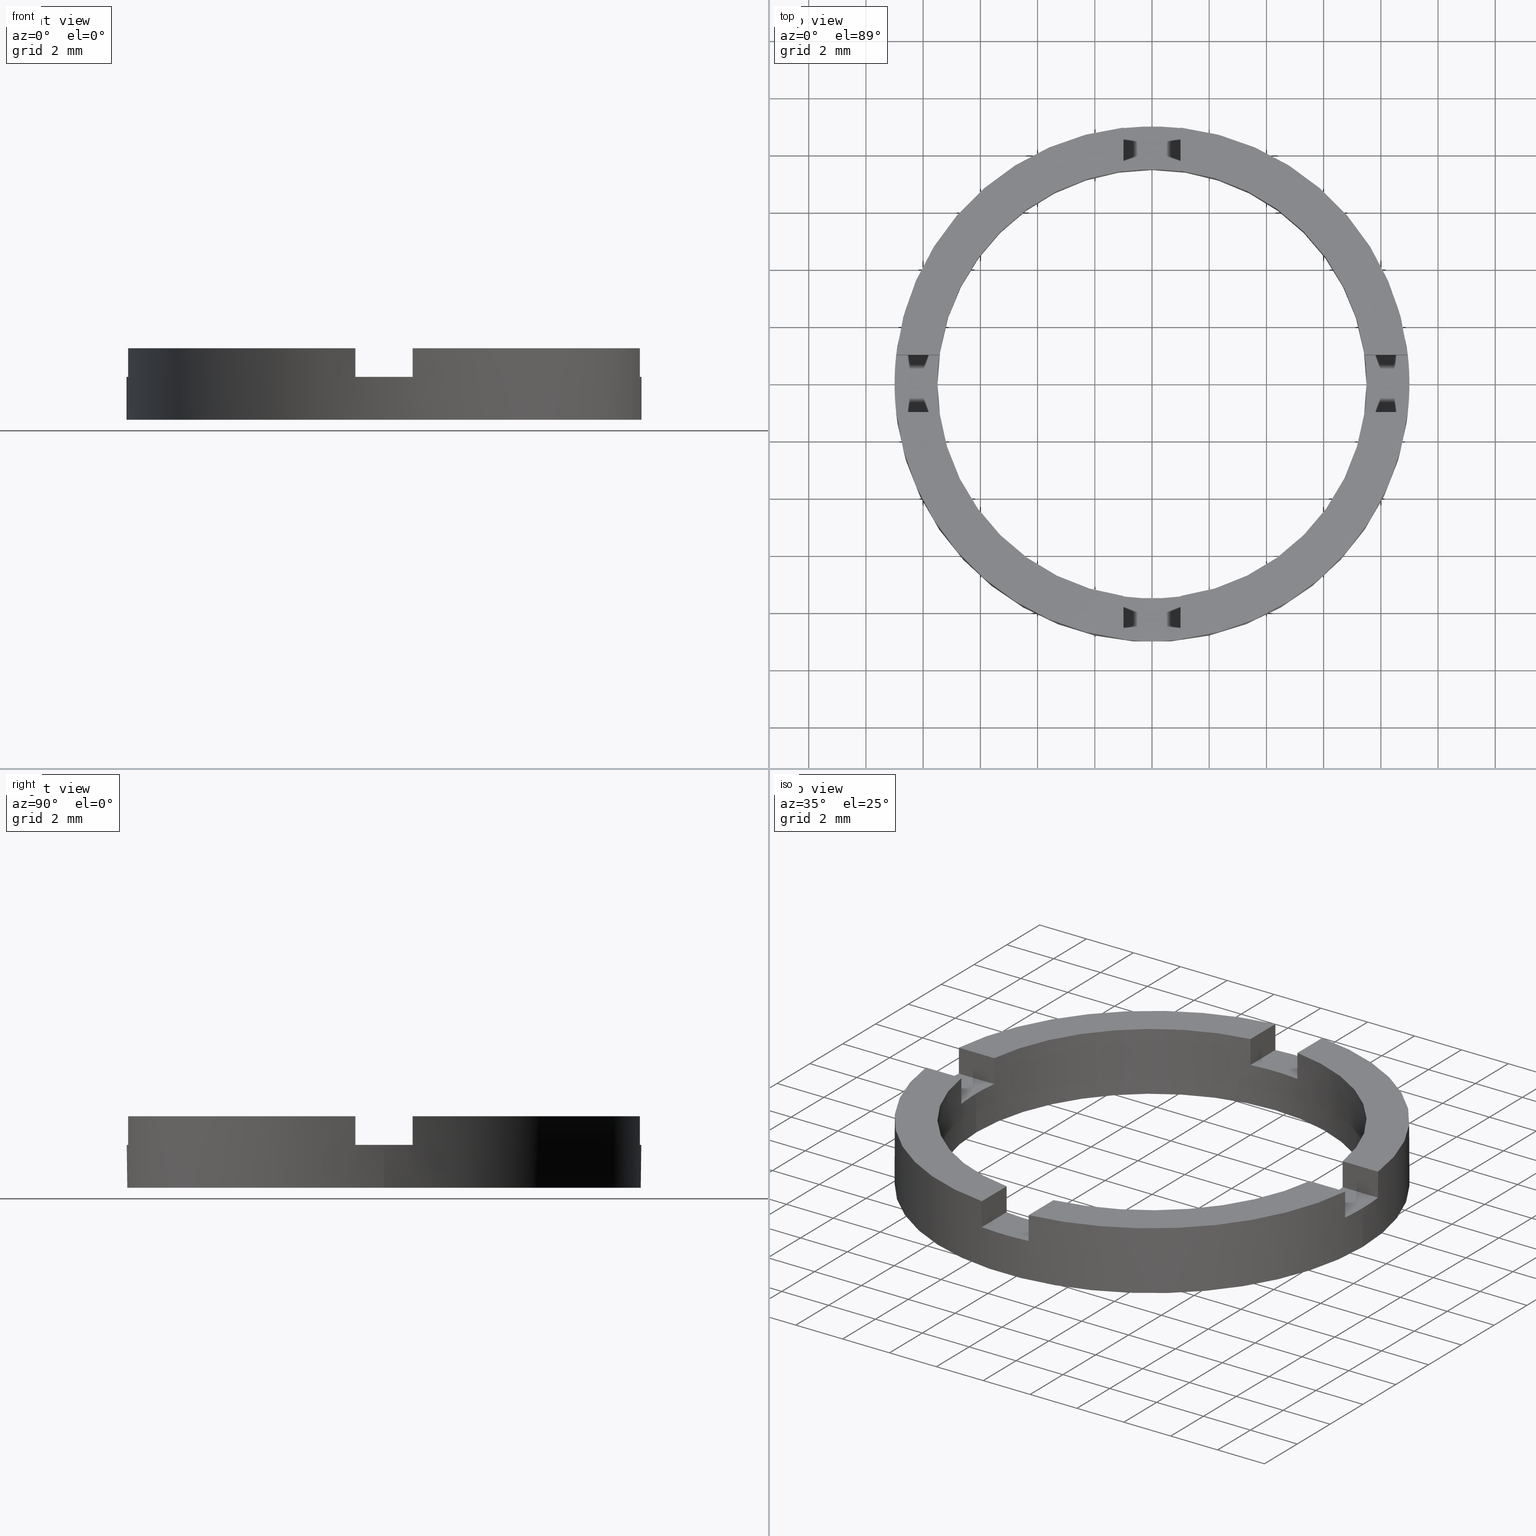
[diagram: canonical four-view strip — front | top / right | iso, engineering-drawing reading convention]
A machine part, canonical four-view strip (front | top / right | iso — engineering-drawing reading convention). The complete STEP part file that produces these views, byte-faithful:
ISO-10303-21;
HEADER;
FILE_DESCRIPTION (( 'STEP AP203' ),
    '1' );
FILE_NAME ('514044.step',
    '2024-12-26T02:32:12',
    ( 'MSI' ),
    ( '' ),
    'SwSTEP 2.0',
    'SolidWorks 2020',
    '' );
FILE_SCHEMA (( 'CONFIG_CONTROL_DESIGN' ));
ENDSEC;

DATA;
#1 = ORIENTED_EDGE ( 'NONE', *, *, #512, .F. ) ;
#2 = ORIENTED_EDGE ( 'NONE', *, *, #263, .T. ) ;
#3 = CARTESIAN_POINT ( 'NONE',  ( -3.734474149672297082E-15, -1.000000000000001110, 2.500000000000000000 ) ) ;
#4 = ORIENTED_EDGE ( 'NONE', *, *, #646, .F. ) ;
#5 = ORIENTED_EDGE ( 'NONE', *, *, #449, .T. ) ;
#6 = DIRECTION ( 'NONE',  ( 1.000000000000000000, -3.734474149672292349E-15, 0.000000000000000000 ) ) ;
#7 = CLOSED_SHELL ( 'NONE', ( #718, #144, #584, #213, #195, #557, #84, #240, #452, #344, #501, #593, #202, #30, #511, #19, #10, #471, #245, #756, #565 ) ) ;
#8 = ORIENTED_EDGE ( 'NONE', *, *, #385, .F. ) ;
#9 = EDGE_CURVE ( 'NONE', #562, #535, #103, .T. ) ;
#10 = ADVANCED_FACE ( 'NONE', ( #378 ), #79, .F. ) ;
#11 = ORIENTED_EDGE ( 'NONE', *, *, #450, .T. ) ;
#12 = ORIENTED_EDGE ( 'NONE', *, *, #148, .F. ) ;
#13 = CARTESIAN_POINT ( 'NONE',  ( -7.433034373659249461, 1.000000000000026645, 2.500000000000000000 ) ) ;
#14 = VERTEX_POINT ( 'NONE', #136 ) ;
#15 = ORIENTED_EDGE ( 'NONE', *, *, #51, .T. ) ;
#16 = ORIENTED_EDGE ( 'NONE', *, *, #37, .T. ) ;
#17 = FACE_OUTER_BOUND ( 'NONE', #521, .T. ) ;
#18 = CARTESIAN_POINT ( 'NONE',  ( 0.000000000000000000, 0.000000000000000000, 2.500000000000000000 ) ) ;
#19 = ADVANCED_FACE ( 'NONE', ( #645 ), #197, .T. ) ;
#20 = VERTEX_POINT ( 'NONE', #443 ) ;
#21 = CARTESIAN_POINT ( 'NONE',  ( 0.000000000000000000, 0.000000000000000000, 1.500000000000000000 ) ) ;
#22 = ORIENTED_EDGE ( 'NONE', *, *, #638, .F. ) ;
#23 = AXIS2_PLACEMENT_3D ( 'NONE', #729, #420, #607 ) ;
#24 = ORIENTED_EDGE ( 'NONE', *, *, #754, .T. ) ;
#25 = CARTESIAN_POINT ( 'NONE',  ( -0.9999999999999986677, -8.944271909999157444, 1.500000000000000000 ) ) ;
#26 = ORIENTED_EDGE ( 'NONE', *, *, #135, .F. ) ;
#27 = DIRECTION ( 'NONE',  ( 1.000000000000000000, -3.734474149672293138E-15, 0.000000000000000000 ) ) ;
#28 = ORIENTED_EDGE ( 'NONE', *, *, #194, .T. ) ;
#29 = CARTESIAN_POINT ( 'NONE',  ( -0.9999999999999986677, -7.433034373659253013, 1.500000000000000000 ) ) ;
#30 = ADVANCED_FACE ( 'NONE', ( #372 ), #681, .F. ) ;
#31 = PLANE ( 'NONE',  #365 ) ;
#32 = ORIENTED_EDGE ( 'NONE', *, *, #737, .F. ) ;
#33 = CARTESIAN_POINT ( 'NONE',  ( -7.500000000000000000, 0.000000000000000000, 1.500000000000000000 ) ) ;
#34 = DIRECTION ( 'NONE',  ( 0.000000000000000000, 0.000000000000000000, 1.000000000000000000 ) ) ;
#35 = CIRCLE ( 'NONE', #748, 7.500000000000000000 ) ;
#36 =( LENGTH_UNIT ( ) NAMED_UNIT ( * ) SI_UNIT ( .MILLI., .METRE. ) );
#37 = EDGE_CURVE ( 'NONE', #374, #261, #640, .T. ) ;
#38 = DIRECTION ( 'NONE',  ( -0.000000000000000000, -0.000000000000000000, 1.000000000000000000 ) ) ;
#39 = LINE ( 'NONE', #173, #306 ) ;
#40 = CIRCLE ( 'NONE', #275, 7.500000000000000000 ) ;
#41 = DIRECTION ( 'NONE',  ( 1.000000000000000000, 1.065814103640150279E-14, 0.000000000000000000 ) ) ;
#42 = LINE ( 'NONE', #493, #65 ) ;
#43 = PERSON_AND_ORGANIZATION_ROLE ( 'design_owner' ) ;
#44 = VECTOR ( 'NONE', #688, 1000.000000000000000 ) ;
#45 = CARTESIAN_POINT ( 'NONE',  ( -0.9999999999999986677, -7.433034373659253013, 1.500000000000000000 ) ) ;
#46 = LINE ( 'NONE', #128, #575 ) ;
#47 = CIRCLE ( 'NONE', #61, 9.000000000000000000 ) ;
#48 = EDGE_CURVE ( 'NONE', #247, #484, #107, .T. ) ;
#49 = DIRECTION ( 'NONE',  ( -0.000000000000000000, -0.000000000000000000, 1.000000000000000000 ) ) ;
#50 = LINE ( 'NONE', #742, #319 ) ;
#51 = EDGE_CURVE ( 'NONE', #691, #745, #578, .T. ) ;
#52 = CIRCLE ( 'NONE', #683, 7.500000000000000000 ) ;
#53 = CARTESIAN_POINT ( 'NONE',  ( 0.000000000000000000, 0.000000000000000000, 2.500000000000000000 ) ) ;
#54 = CIRCLE ( 'NONE', #502, 9.000000000000000000 ) ;
#55 = FACE_OUTER_BOUND ( 'NONE', #692, .T. ) ;
#56 = VECTOR ( 'NONE', #427, 1000.000000000000000 ) ;
#57 = PLANE ( 'NONE',  #392 ) ;
#58 = VECTOR ( 'NONE', #243, 1000.000000000000000 ) ;
#59 = CARTESIAN_POINT ( 'NONE',  ( 0.000000000000000000, 0.000000000000000000, 1.500000000000000000 ) ) ;
#60 = CARTESIAN_POINT ( 'NONE',  ( 1.000000000000001332, -8.944271909999157444, 1.500000000000000000 ) ) ;
#61 = AXIS2_PLACEMENT_3D ( 'NONE', #219, #422, #149 ) ;
#62 = EDGE_CURVE ( 'NONE', #20, #548, #596, .T. ) ;
#63 = FACE_OUTER_BOUND ( 'NONE', #650, .T. ) ;
#64 = LINE ( 'NONE', #60, #299 ) ;
#65 = VECTOR ( 'NONE', #123, 1000.000000000000000 ) ;
#66 = VECTOR ( 'NONE', #27, 1000.000000000000000 ) ;
#67 = LINE ( 'NONE', #3, #580 ) ;
#68 = DIRECTION ( 'NONE',  ( 0.000000000000000000, 0.000000000000000000, 1.000000000000000000 ) ) ;
#69 = LINE ( 'NONE', #573, #330 ) ;
#70 = AXIS2_PLACEMENT_3D ( 'NONE', #192, #559, #387 ) ;
#71 = DIRECTION ( 'NONE',  ( -0.000000000000000000, -0.000000000000000000, 1.000000000000000000 ) ) ;
#72 = FACE_OUTER_BOUND ( 'NONE', #276, .T. ) ;
#73 = VECTOR ( 'NONE', #396, 1000.000000000000000 ) ;
#74 = FACE_OUTER_BOUND ( 'NONE', #526, .T. ) ;
#75 = FACE_OUTER_BOUND ( 'NONE', #106, .T. ) ;
#76 = LINE ( 'NONE', #457, #611 ) ;
#77 = AXIS2_PLACEMENT_3D ( 'NONE', #739, #625, #434 ) ;
#78 = LINE ( 'NONE', #273, #349 ) ;
#79 = PLANE ( 'NONE',  #760 ) ;
#80 = VECTOR ( 'NONE', #670, 1000.000000000000000 ) ;
#81 = LINE ( 'NONE', #716, #614 ) ;
#82 = CIRCLE ( 'NONE', #746, 9.000000000000000000 ) ;
#83 = LINE ( 'NONE', #654, #346 ) ;
#84 = ADVANCED_FACE ( 'NONE', ( #597 ), #594, .T. ) ;
#85 = VECTOR ( 'NONE', #291, 1000.000000000000000 ) ;
#86 = LINE ( 'NONE', #249, #359 ) ;
#87 = FACE_OUTER_BOUND ( 'NONE', #781, .T. ) ;
#88 = EDGE_CURVE ( 'NONE', #14, #97, #54, .T. ) ;
#89 = CIRCLE ( 'NONE', #571, 9.000000000000000000 ) ;
#90 = DIRECTION ( 'NONE',  ( -0.000000000000000000, 0.000000000000000000, 1.000000000000000000 ) ) ;
#91 = CIRCLE ( 'NONE', #736, 9.000000000000000000 ) ;
#92 = VECTOR ( 'NONE', #184, 1000.000000000000000 ) ;
#93 = LINE ( 'NONE', #347, #362 ) ;
#94 = VECTOR ( 'NONE', #71, 1000.000000000000000 ) ;
#95 = CARTESIAN_POINT ( 'NONE',  ( -8.944271909999153891, 1.000000000000032419, 1.500000000000000000 ) ) ;
#96 = CARTESIAN_POINT ( 'NONE',  ( -0.9999999999999986677, 0.000000000000000000, 1.500000000000000000 ) ) ;
#97 = VERTEX_POINT ( 'NONE', #499 ) ;
#98 = AXIS2_PLACEMENT_3D ( 'NONE', #598, #703, #504 ) ;
#99 = EDGE_LOOP ( 'NONE', ( #228, #519, #537, #439, #541, #464, #125, #664, #26, #28, #395, #706 ) ) ;
#100 = EDGE_CURVE ( 'NONE', #665, #562, #52, .T. ) ;
#101 = CARTESIAN_POINT ( 'NONE',  ( 7.500000000000000000, 9.184850993605147944E-16, 1.500000000000000000 ) ) ;
#102 = ORIENTED_EDGE ( 'NONE', *, *, #678, .F. ) ;
#103 = LINE ( 'NONE', #635, #94 ) ;
#104 = DIRECTION ( 'NONE',  ( 1.000000000000000000, 0.000000000000000000, 0.000000000000000000 ) ) ;
#105 = APPLICATION_PROTOCOL_DEFINITION ( 'international standard', 'config_control_design', 1994, #608 ) ;
#106 = EDGE_LOOP ( 'NONE', ( #778, #642, #5, #644, #416, #546 ) ) ;
#107 = LINE ( 'NONE', #333, #66 ) ;
#108 = DIRECTION ( 'NONE',  ( 0.000000000000000000, 1.000000000000000000, -0.000000000000000000 ) ) ;
#109 = EDGE_LOOP ( 'NONE', ( #139, #32, #24, #270 ) ) ;
#110 = VERTEX_POINT ( 'NONE', #386 ) ;
#111 = CARTESIAN_POINT ( 'NONE',  ( 0.000000000000000000, 0.000000000000000000, 1.500000000000000000 ) ) ;
#112 = MECHANICAL_CONTEXT ( 'NONE', #608, 'mechanical' ) ;
#113 = VERTEX_POINT ( 'NONE', #124 ) ;
#114 = AXIS2_PLACEMENT_3D ( 'NONE', #487, #747, #41 ) ;
#115 = DIRECTION ( 'NONE',  ( 1.000000000000000000, 0.000000000000000000, 0.000000000000000000 ) ) ;
#116 = DIRECTION ( 'NONE',  ( 1.000000000000000000, 0.000000000000000000, -0.000000000000000000 ) ) ;
#117 = DIRECTION ( 'NONE',  ( 0.000000000000000000, 0.000000000000000000, 1.000000000000000000 ) ) ;
#118 = DIRECTION ( 'NONE',  ( 1.000000000000000000, 0.000000000000000000, 0.000000000000000000 ) ) ;
#119 = EDGE_CURVE ( 'NONE', #143, #540, #308, .T. ) ;
#120 = APPLICATION_CONTEXT ( 'configuration controlled 3d designs of mechanical parts and assemblies' ) ;
#121 = CARTESIAN_POINT ( 'NONE',  ( 7.433034373659256566, 0.9999999999999711342, 1.500000000000000000 ) ) ;
#122 = DIRECTION ( 'NONE',  ( -0.000000000000000000, -0.000000000000000000, 1.000000000000000000 ) ) ;
#123 = DIRECTION ( 'NONE',  ( -0.000000000000000000, -0.000000000000000000, -1.000000000000000000 ) ) ;
#124 = CARTESIAN_POINT ( 'NONE',  ( -7.433034373659249461, 1.000000000000026645, 1.500000000000000000 ) ) ;
#125 = ORIENTED_EDGE ( 'NONE', *, *, #731, .F. ) ;
#126 = EDGE_CURVE ( 'NONE', #562, #691, #50, .T. ) ;
#127 = ORIENTED_EDGE ( 'NONE', *, *, #126, .F. ) ;
#128 = CARTESIAN_POINT ( 'NONE',  ( 1.000000000000001332, 0.000000000000000000, 1.500000000000000000 ) ) ;
#129 = ORIENTED_EDGE ( 'NONE', *, *, #536, .T. ) ;
#130 = PLANE ( 'NONE',  #141 ) ;
#131 = APPROVAL ( #287, 'δָ��' ) ;
#132 = ORIENTED_EDGE ( 'NONE', *, *, #157, .T. ) ;
#133 = DIRECTION ( 'NONE',  ( -0.000000000000000000, -0.000000000000000000, -1.000000000000000000 ) ) ;
#134 = AXIS2_PLACEMENT_3D ( 'NONE', #414, #104, #579 ) ;
#135 = EDGE_CURVE ( 'NONE', #773, #545, #322, .T. ) ;
#136 = CARTESIAN_POINT ( 'NONE',  ( -8.944271909999160997, -0.9999999999999676925, 2.500000000000000000 ) ) ;
#137 = ORIENTED_EDGE ( 'NONE', *, *, #672, .F. ) ;
#138 = CARTESIAN_POINT ( 'NONE',  ( 0.000000000000000000, 0.000000000000000000, 2.500000000000000000 ) ) ;
#139 = ORIENTED_EDGE ( 'NONE', *, *, #488, .F. ) ;
#140 = CARTESIAN_POINT ( 'NONE',  ( 0.000000000000000000, 0.000000000000000000, 1.500000000000000000 ) ) ;
#141 = AXIS2_PLACEMENT_3D ( 'NONE', #302, #196, #639 ) ;
#142 = ORIENTED_EDGE ( 'NONE', *, *, #734, .F. ) ;
#143 = VERTEX_POINT ( 'NONE', #238 ) ;
#144 = ADVANCED_FACE ( 'NONE', ( #314 ), #592, .T. ) ;
#145 = CARTESIAN_POINT ( 'NONE',  ( 0.000000000000000000, 0.000000000000000000, 0.000000000000000000 ) ) ;
#146 = CARTESIAN_POINT ( 'NONE',  ( 0.000000000000000000, 0.000000000000000000, 1.500000000000000000 ) ) ;
#147 = EDGE_CURVE ( 'NONE', #484, #208, #576, .T. ) ;
#148 = EDGE_CURVE ( 'NONE', #261, #374, #316, .T. ) ;
#149 = DIRECTION ( 'NONE',  ( 1.000000000000000000, 0.000000000000000000, 0.000000000000000000 ) ) ;
#150 = DIRECTION ( 'NONE',  ( 0.000000000000000000, 0.000000000000000000, 1.000000000000000000 ) ) ;
#151 = VERTEX_POINT ( 'NONE', #388 ) ;
#152 = ORIENTED_EDGE ( 'NONE', *, *, #232, .F. ) ;
#153 = PLANE ( 'NONE',  #175 ) ;
#154 = PERSON_AND_ORGANIZATION_ROLE ( 'design_supplier' ) ;
#155 = APPROVAL_DATE_TIME ( #181, #131 ) ;
#156 = ORIENTED_EDGE ( 'NONE', *, *, #505, .T. ) ;
#157 = EDGE_CURVE ( 'NONE', #466, #643, #572, .T. ) ;
#158 = EDGE_CURVE ( 'NONE', #466, #261, #42, .T. ) ;
#159 = CARTESIAN_POINT ( 'NONE',  ( 0.000000000000000000, 0.000000000000000000, 2.500000000000000000 ) ) ;
#160 = EDGE_LOOP ( 'NONE', ( #687, #776, #752, #743 ) ) ;
#161 = ORIENTED_EDGE ( 'NONE', *, *, #48, .T. ) ;
#162 = APPROVAL_PERSON_ORGANIZATION ( #190, #241, #279 ) ;
#163 = DIRECTION ( 'NONE',  ( -0.000000000000000000, 0.000000000000000000, 1.000000000000000000 ) ) ;
#164 = APPROVAL_ROLE ( '' ) ;
#165 = CARTESIAN_POINT ( 'NONE',  ( 0.000000000000000000, 0.000000000000000000, 2.500000000000000000 ) ) ;
#166 = PERSON_AND_ORGANIZATION ( #244, #704 ) ;
#167 = PERSON_AND_ORGANIZATION ( #244, #704 ) ;
#168 = DIRECTION ( 'NONE',  ( 1.000000000000000000, 0.000000000000000000, 0.000000000000000000 ) ) ;
#169 = ORIENTED_EDGE ( 'NONE', *, *, #62, .F. ) ;
#170 = APPROVAL_PERSON_ORGANIZATION ( #167, #376, #353 ) ;
#171 = COORDINATED_UNIVERSAL_TIME_OFFSET ( 8, 0, .AHEAD. ) ;
#172 = VERTEX_POINT ( 'NONE', #684 ) ;
#173 = CARTESIAN_POINT ( 'NONE',  ( -3.734474149672297082E-15, -1.000000000000001110, 1.500000000000000000 ) ) ;
#174 = DIRECTION ( 'NONE',  ( -0.000000000000000000, -0.000000000000000000, -1.000000000000000000 ) ) ;
#175 = AXIS2_PLACEMENT_3D ( 'NONE', #204, #34, #221 ) ;
#176 = CALENDAR_DATE ( 2024, 26, 12 ) ;
#177 = ORIENTED_EDGE ( 'NONE', *, *, #119, .T. ) ;
#178 = CALENDAR_DATE ( 2024, 26, 12 ) ;
#179 = CARTESIAN_POINT ( 'NONE',  ( 0.000000000000000000, 0.000000000000000000, 1.500000000000000000 ) ) ;
#180 = DIRECTION ( 'NONE',  ( 0.000000000000000000, 0.000000000000000000, -1.000000000000000000 ) ) ;
#181 = DATE_AND_TIME ( #178, #185 ) ;
#182 = ORIENTED_EDGE ( 'NONE', *, *, #336, .F. ) ;
#183 = CALENDAR_DATE ( 2024, 26, 12 ) ;
#184 = DIRECTION ( 'NONE',  ( 0.000000000000000000, 1.000000000000000000, -0.000000000000000000 ) ) ;
#185 = LOCAL_TIME ( 10, 32, 12.00000000000000000, #446 ) ;
#186 = APPROVAL_DATE_TIME ( #711, #241 ) ;
#187 = LOCAL_TIME ( 10, 32, 12.00000000000000000, #171 ) ;
#188 = LOCAL_TIME ( 10, 32, 12.00000000000000000, #456 ) ;
#189 = DIRECTION ( 'NONE',  ( 1.000000000000000000, 0.000000000000000000, 0.000000000000000000 ) ) ;
#190 = PERSON_AND_ORGANIZATION ( #244, #704 ) ;
#191 = DATE_AND_TIME ( #441, #187 ) ;
#192 = CARTESIAN_POINT ( 'NONE',  ( -3.734474149672297082E-15, -1.000000000000001110, 1.500000000000000000 ) ) ;
#193 = EDGE_CURVE ( 'NONE', #535, #745, #67, .T. ) ;
#194 = EDGE_CURVE ( 'NONE', #773, #208, #589, .T. ) ;
#195 = ADVANCED_FACE ( 'NONE', ( #311 ), #630, .T. ) ;
#196 = DIRECTION ( 'NONE',  ( -3.734474149672293138E-15, -1.000000000000000000, 0.000000000000000000 ) ) ;
#197 = PLANE ( 'NONE',  #624 ) ;
#198 = DIRECTION ( 'NONE',  ( 1.000000000000000000, 0.000000000000000000, 0.000000000000000000 ) ) ;
#199 = AXIS2_PLACEMENT_3D ( 'NONE', #146, #517, #727 ) ;
#200 = EDGE_CURVE ( 'NONE', #432, #773, #46, .T. ) ;
#201 = CARTESIAN_POINT ( 'NONE',  ( 3.734474149672289194E-15, 0.9999999999999988898, 2.500000000000000000 ) ) ;
#202 = ADVANCED_FACE ( 'NONE', ( #63 ), #130, .T. ) ;
#203 = ORIENTED_EDGE ( 'NONE', *, *, #696, .T. ) ;
#204 = CARTESIAN_POINT ( 'NONE',  ( 0.000000000000000000, 0.000000000000000000, 0.000000000000000000 ) ) ;
#205 = CC_DESIGN_SECURITY_CLASSIFICATION ( #779, ( #495 ) ) ;
#206 = EDGE_CURVE ( 'NONE', #771, #643, #310, .T. ) ;
#207 = DIRECTION ( 'NONE',  ( 0.000000000000000000, -0.000000000000000000, -1.000000000000000000 ) ) ;
#208 = VERTEX_POINT ( 'NONE', #770 ) ;
#209 = DIRECTION ( 'NONE',  ( -0.000000000000000000, 0.000000000000000000, 1.000000000000000000 ) ) ;
#210 = ORIENTED_EDGE ( 'NONE', *, *, #193, .F. ) ;
#211 = ORIENTED_EDGE ( 'NONE', *, *, #224, .F. ) ;
#212 = CARTESIAN_POINT ( 'NONE',  ( 7.500000000000000000, 9.184850993605147944E-16, 0.000000000000000000 ) ) ;
#213 = ADVANCED_FACE ( 'NONE', ( #321 ), #57, .T. ) ;
#214 = CARTESIAN_POINT ( 'NONE',  ( 0.000000000000000000, 0.000000000000000000, 2.500000000000000000 ) ) ;
#215 = EDGE_CURVE ( 'NONE', #771, #247, #324, .T. ) ;
#216 = ORIENTED_EDGE ( 'NONE', *, *, #713, .T. ) ;
#217 = DIRECTION ( 'NONE',  ( 0.000000000000000000, 0.000000000000000000, 1.000000000000000000 ) ) ;
#218 =( NAMED_UNIT ( * ) SI_UNIT ( $, .STERADIAN. ) SOLID_ANGLE_UNIT ( ) );
#219 = CARTESIAN_POINT ( 'NONE',  ( 0.000000000000000000, 0.000000000000000000, 1.500000000000000000 ) ) ;
#220 = CARTESIAN_POINT ( 'NONE',  ( 1.000000000000001332, 7.433034373659253013, 2.500000000000000000 ) ) ;
#221 = DIRECTION ( 'NONE',  ( 1.000000000000000000, 0.000000000000000000, -0.000000000000000000 ) ) ;
#222 = CC_DESIGN_PERSON_AND_ORGANIZATION_ASSIGNMENT ( #437, #154, ( #495 ) ) ;
#223 = PLANE ( 'NONE',  #677 ) ;
#224 = EDGE_CURVE ( 'NONE', #542, #535, #40, .T. ) ;
#225 = CARTESIAN_POINT ( 'NONE',  ( 0.000000000000000000, 0.000000000000000000, 0.000000000000000000 ) ) ;
#226 = DIRECTION ( 'NONE',  ( 1.000000000000000000, 0.000000000000000000, 0.000000000000000000 ) ) ;
#227 = DIRECTION ( 'NONE',  ( -1.000000000000000000, 0.000000000000000000, 0.000000000000000000 ) ) ;
#228 = ORIENTED_EDGE ( 'NONE', *, *, #157, .F. ) ;
#229 = CARTESIAN_POINT ( 'NONE',  ( 1.000000000000001332, 0.000000000000000000, 1.500000000000000000 ) ) ;
#230 = CARTESIAN_POINT ( 'NONE',  ( 9.000000000000000000, 1.102182119232617714E-15, 0.000000000000000000 ) ) ;
#231 = EDGE_CURVE ( 'NONE', #691, #466, #47, .T. ) ;
#232 = EDGE_CURVE ( 'NONE', #247, #693, #327, .T. ) ;
#233 = DIRECTION ( 'NONE',  ( 0.000000000000000000, 0.000000000000000000, -1.000000000000000000 ) ) ;
#234 = DIRECTION ( 'NONE',  ( 1.000000000000000000, 0.000000000000000000, -0.000000000000000000 ) ) ;
#235 = DIRECTION ( 'NONE',  ( 1.000000000000000000, 0.000000000000000000, 0.000000000000000000 ) ) ;
#236 = AXIS2_PLACEMENT_3D ( 'NONE', #59, #490, #506 ) ;
#237 = DIRECTION ( 'NONE',  ( 0.000000000000000000, 1.000000000000000000, -0.000000000000000000 ) ) ;
#238 = CARTESIAN_POINT ( 'NONE',  ( -8.944271909999153891, 1.000000000000032419, 2.500000000000000000 ) ) ;
#239 = CARTESIAN_POINT ( 'NONE',  ( 0.000000000000000000, 0.000000000000000000, 1.500000000000000000 ) ) ;
#240 = ADVANCED_FACE ( 'NONE', ( #55 ), #560, .F. ) ;
#241 = APPROVAL ( #415, 'δָ��' ) ;
#242 = CARTESIAN_POINT ( 'NONE',  ( 3.734474149672289194E-15, 0.9999999999999988898, 1.500000000000000000 ) ) ;
#243 = DIRECTION ( 'NONE',  ( 1.000000000000000000, -3.734474149672293138E-15, 0.000000000000000000 ) ) ;
#244 = PERSON ( 'δָ��', 'δָ��', 'δָ��', ('δָ��'), ('δָ��'), ('δָ��') ) ;
#245 = ADVANCED_FACE ( 'NONE', ( #17 ), #31, .T. ) ;
#246 = ORIENTED_EDGE ( 'NONE', *, *, #558, .T. ) ;
#247 = VERTEX_POINT ( 'NONE', #733 ) ;
#248 = ORIENTED_EDGE ( 'NONE', *, *, #200, .F. ) ;
#249 = CARTESIAN_POINT ( 'NONE',  ( -9.000000000000000000, 0.000000000000000000, 2.500000000000000000 ) ) ;
#250 = ORIENTED_EDGE ( 'NONE', *, *, #459, .F. ) ;
#251 = PLANE ( 'NONE',  #199 ) ;
#252 = ORIENTED_EDGE ( 'NONE', *, *, #761, .F. ) ;
#253 = DIRECTION ( 'NONE',  ( -0.000000000000000000, -0.000000000000000000, 1.000000000000000000 ) ) ;
#254 = ORIENTED_EDGE ( 'NONE', *, *, #412, .T. ) ;
#255 = ORIENTED_EDGE ( 'NONE', *, *, #119, .F. ) ;
#256 = CARTESIAN_POINT ( 'NONE',  ( 1.000000000000001332, -7.433034373659253013, 2.500000000000000000 ) ) ;
#257 = DIRECTION ( 'NONE',  ( 0.000000000000000000, 0.000000000000000000, 1.000000000000000000 ) ) ;
#258 = EDGE_LOOP ( 'NONE', ( #264, #129, #641, #375 ) ) ;
#259 = DIRECTION ( 'NONE',  ( 0.000000000000000000, 0.000000000000000000, 1.000000000000000000 ) ) ;
#260 = ORIENTED_EDGE ( 'NONE', *, *, #100, .F. ) ;
#261 = VERTEX_POINT ( 'NONE', #230 ) ;
#262 = AXIS2_PLACEMENT_3D ( 'NONE', #214, #259, #508 ) ;
#263 = EDGE_CURVE ( 'NONE', #661, #702, #590, .T. ) ;
#264 = ORIENTED_EDGE ( 'NONE', *, *, #492, .F. ) ;
#265 = DIRECTION ( 'NONE',  ( 1.000000000000000000, 4.440892098500626162E-15, 0.000000000000000000 ) ) ;
#266 = ORIENTED_EDGE ( 'NONE', *, *, #450, .F. ) ;
#267 = DIRECTION ( 'NONE',  ( 1.000000000000000000, 0.000000000000000000, 0.000000000000000000 ) ) ;
#268 = ORIENTED_EDGE ( 'NONE', *, *, #734, .T. ) ;
#269 = EDGE_LOOP ( 'NONE', ( #555, #538, #127, #288 ) ) ;
#270 = ORIENTED_EDGE ( 'NONE', *, *, #638, .T. ) ;
#271 = APPROVAL_STATUS ( 'not_yet_approved' ) ;
#272 = ORIENTED_EDGE ( 'NONE', *, *, #48, .F. ) ;
#273 = CARTESIAN_POINT ( 'NONE',  ( -0.9999999999999986677, 0.000000000000000000, 2.500000000000000000 ) ) ;
#274 = ORIENTED_EDGE ( 'NONE', *, *, #206, .T. ) ;
#275 = AXIS2_PLACEMENT_3D ( 'NONE', #473, #758, #354 ) ;
#276 = EDGE_LOOP ( 'NONE', ( #260, #447, #250, #685, #738, #268, #462, #22, #182, #203, #430, #726 ) ) ;
#277 = ORIENTED_EDGE ( 'NONE', *, *, #669, .F. ) ;
#278 = DIRECTION ( 'NONE',  ( 0.000000000000000000, 1.000000000000000000, -0.000000000000000000 ) ) ;
#279 = APPROVAL_ROLE ( '' ) ;
#280 = CARTESIAN_POINT ( 'NONE',  ( 7.433034373659256566, 0.9999999999999711342, 1.500000000000000000 ) ) ;
#281 = ORIENTED_EDGE ( 'NONE', *, *, #669, .T. ) ;
#282 = PLANE ( 'NONE',  #262 ) ;
#283 = ORIENTED_EDGE ( 'NONE', *, *, #428, .F. ) ;
#284 = ORIENTED_EDGE ( 'NONE', *, *, #303, .F. ) ;
#285 = ORIENTED_EDGE ( 'NONE', *, *, #754, .F. ) ;
#286 = DIRECTION ( 'NONE',  ( 0.000000000000000000, 0.000000000000000000, 1.000000000000000000 ) ) ;
#287 = APPROVAL_STATUS ( 'not_yet_approved' ) ;
#288 = ORIENTED_EDGE ( 'NONE', *, *, #9, .T. ) ;
#289 = PRODUCT_RELATED_PRODUCT_CATEGORY ( 'detail', '', ( #551 ) ) ;
#290 = EDGE_CURVE ( 'NONE', #665, #527, #582, .T. ) ;
#291 = DIRECTION ( 'NONE',  ( -0.000000000000000000, -0.000000000000000000, 1.000000000000000000 ) ) ;
#292 = CARTESIAN_POINT ( 'NONE',  ( -7.500000000000000000, 0.000000000000000000, 2.500000000000000000 ) ) ;
#293 = ORIENTED_EDGE ( 'NONE', *, *, #393, .F. ) ;
#294 = AXIS2_PLACEMENT_3D ( 'NONE', #533, #616, #769 ) ;
#295 = ORIENTED_EDGE ( 'NONE', *, *, #780, .F. ) ;
#296 = ORIENTED_EDGE ( 'NONE', *, *, #696, .F. ) ;
#297 = PERSON_AND_ORGANIZATION_ROLE ( 'creator' ) ;
#298 = CARTESIAN_POINT ( 'NONE',  ( 0.000000000000000000, 0.000000000000000000, 1.500000000000000000 ) ) ;
#299 = VECTOR ( 'NONE', #122, 1000.000000000000000 ) ;
#300 = FACE_OUTER_BOUND ( 'NONE', #109, .T. ) ;
#301 = CIRCLE ( 'NONE', #435, 7.500000000000000000 ) ;
#302 = CARTESIAN_POINT ( 'NONE',  ( 3.734474149672289194E-15, 0.9999999999999988898, 1.500000000000000000 ) ) ;
#303 = EDGE_CURVE ( 'NONE', #432, #693, #587, .T. ) ;
#304 = CIRCLE ( 'NONE', #114, 7.500000000000000000 ) ;
#305 = EDGE_CURVE ( 'NONE', #445, #699, #567, .T. ) ;
#306 = VECTOR ( 'NONE', #368, 1000.000000000000000 ) ;
#307 = VECTOR ( 'NONE', #49, 1000.000000000000000 ) ;
#308 = LINE ( 'NONE', #201, #58 ) ;
#309 = ORIENTED_EDGE ( 'NONE', *, *, #88, .F. ) ;
#310 = LINE ( 'NONE', #529, #326 ) ;
#311 = FACE_OUTER_BOUND ( 'NONE', #160, .T. ) ;
#312 = VECTOR ( 'NONE', #478, 1000.000000000000000 ) ;
#313 = AXIS2_PLACEMENT_3D ( 'NONE', #298, #768, #377 ) ;
#314 = FACE_OUTER_BOUND ( 'NONE', #99, .T. ) ;
#315 = AXIS2_PLACEMENT_3D ( 'NONE', #588, #663, #659 ) ;
#316 = CIRCLE ( 'NONE', #77, 9.000000000000000000 ) ;
#317 = CARTESIAN_POINT ( 'NONE',  ( -0.9999999999999986677, 7.433034373659253013, 1.500000000000000000 ) ) ;
#318 = VECTOR ( 'NONE', #735, 1000.000000000000000 ) ;
#319 = VECTOR ( 'NONE', #550, 1000.000000000000000 ) ;
#320 = DIRECTION ( 'NONE',  ( -0.000000000000000000, -0.000000000000000000, -1.000000000000000000 ) ) ;
#321 = FACE_OUTER_BOUND ( 'NONE', #516, .T. ) ;
#322 = CIRCLE ( 'NONE', #586, 9.000000000000000000 ) ;
#323 = DIRECTION ( 'NONE',  ( 1.000000000000000000, -3.734474149672293138E-15, 0.000000000000000000 ) ) ;
#324 = LINE ( 'NONE', #280, #312 ) ;
#325 = EDGE_CURVE ( 'NONE', #110, #379, #64, .T. ) ;
#326 = VECTOR ( 'NONE', #609, 1000.000000000000000 ) ;
#327 = CIRCLE ( 'NONE', #723, 7.500000000000000000 ) ;
#328 = ADVANCED_BREP_SHAPE_REPRESENTATION ( '514044', ( #475, #399 ), #655 ) ;
#329 = CARTESIAN_POINT ( 'NONE',  ( 9.000000000000000000, 1.102182119232617714E-15, 1.500000000000000000 ) ) ;
#330 = VECTOR ( 'NONE', #278, 1000.000000000000000 ) ;
#331 = DIRECTION ( 'NONE',  ( 1.000000000000000000, 0.000000000000000000, 0.000000000000000000 ) ) ;
#332 = CIRCLE ( 'NONE', #313, 7.500000000000000000 ) ;
#333 = CARTESIAN_POINT ( 'NONE',  ( 3.734474149672289194E-15, 0.9999999999999988898, 2.500000000000000000 ) ) ;
#334 = FACE_OUTER_BOUND ( 'NONE', #381, .T. ) ;
#335 = CC_DESIGN_APPROVAL ( #241, ( #418 ) ) ;
#336 = EDGE_CURVE ( 'NONE', #436, #433, #35, .T. ) ;
#337 = CARTESIAN_POINT ( 'NONE',  ( 1.000000000000001332, 0.000000000000000000, 2.500000000000000000 ) ) ;
#338 = FACE_BOUND ( 'NONE', #744, .T. ) ;
#339 = DIRECTION ( 'NONE',  ( 0.000000000000000000, 0.000000000000000000, 1.000000000000000000 ) ) ;
#340 = FACE_OUTER_BOUND ( 'NONE', #777, .T. ) ;
#341 = LINE ( 'NONE', #755, #364 ) ;
#342 = LINE ( 'NONE', #485, #601 ) ;
#343 = CARTESIAN_POINT ( 'NONE',  ( -0.9999999999999986677, 8.944271909999157444, 1.500000000000000000 ) ) ;
#344 = ADVANCED_FACE ( 'NONE', ( #300 ), #520, .T. ) ;
#345 = CARTESIAN_POINT ( 'NONE',  ( 0.000000000000000000, 0.000000000000000000, 2.500000000000000000 ) ) ;
#346 = VECTOR ( 'NONE', #38, 1000.000000000000000 ) ;
#347 = CARTESIAN_POINT ( 'NONE',  ( -8.944271909999153891, 1.000000000000032419, 1.500000000000000000 ) ) ;
#348 = LINE ( 'NONE', #757, #73 ) ;
#349 = VECTOR ( 'NONE', #591, 1000.000000000000000 ) ;
#350 = AXIS2_PLACEMENT_3D ( 'NONE', #423, #339, #763 ) ;
#351 = FACE_OUTER_BOUND ( 'NONE', #258, .T. ) ;
#352 = PLANE ( 'NONE',  #134 ) ;
#353 = APPROVAL_ROLE ( '' ) ;
#354 = DIRECTION ( 'NONE',  ( 1.000000000000000000, 0.000000000000000000, 0.000000000000000000 ) ) ;
#355 = LINE ( 'NONE', #465, #626 ) ;
#356 = CARTESIAN_POINT ( 'NONE',  ( 0.000000000000000000, 0.000000000000000000, 2.500000000000000000 ) ) ;
#357 = CIRCLE ( 'NONE', #700, 7.500000000000000000 ) ;
#358 = CIRCLE ( 'NONE', #350, 7.500000000000000000 ) ;
#359 = VECTOR ( 'NONE', #476, 1000.000000000000000 ) ;
#360 = DIRECTION ( 'NONE',  ( 1.000000000000000000, 0.000000000000000000, 0.000000000000000000 ) ) ;
#361 = PERSON_AND_ORGANIZATION_ROLE ( 'creator' ) ;
#362 = VECTOR ( 'NONE', #603, 1000.000000000000000 ) ;
#363 = CC_DESIGN_APPROVAL ( #131, ( #779 ) ) ;
#364 = VECTOR ( 'NONE', #108, 1000.000000000000000 ) ;
#365 = AXIS2_PLACEMENT_3D ( 'NONE', #96, #118, #180 ) ;
#366 = CIRCLE ( 'NONE', #510, 9.000000000000000000 ) ;
#367 = LINE ( 'NONE', #532, #633 ) ;
#368 = DIRECTION ( 'NONE',  ( 1.000000000000000000, -3.734474149672292349E-15, 0.000000000000000000 ) ) ;
#369 = CIRCLE ( 'NONE', #236, 7.500000000000000000 ) ;
#370 = CARTESIAN_POINT ( 'NONE',  ( 8.944271909999153891, -1.000000000000034417, 2.500000000000000000 ) ) ;
#371 = CARTESIAN_POINT ( 'NONE',  ( 7.500000000000000000, 9.184850993605147944E-16, 2.500000000000000000 ) ) ;
#372 = FACE_OUTER_BOUND ( 'NONE', #269, .T. ) ;
#373 = ORIENTED_EDGE ( 'NONE', *, *, #672, .T. ) ;
#374 = VERTEX_POINT ( 'NONE', #600 ) ;
#375 = ORIENTED_EDGE ( 'NONE', *, *, #135, .T. ) ;
#376 = APPROVAL ( #271, 'δָ��' ) ;
#377 = DIRECTION ( 'NONE',  ( 1.000000000000000000, -1.154631945610162802E-14, 0.000000000000000000 ) ) ;
#378 = FACE_OUTER_BOUND ( 'NONE', #523, .T. ) ;
#379 = VERTEX_POINT ( 'NONE', #673 ) ;
#380 = ORIENTED_EDGE ( 'NONE', *, *, #385, .T. ) ;
#381 = EDGE_LOOP ( 'NONE', ( #402, #637, #662, #657, #534, #132 ) ) ;
#382 = DIRECTION ( 'NONE',  ( 0.000000000000000000, 0.000000000000000000, 1.000000000000000000 ) ) ;
#383 = ORIENTED_EDGE ( 'NONE', *, *, #194, .F. ) ;
#384 = CARTESIAN_POINT ( 'NONE',  ( -3.734474149672297082E-15, -1.000000000000001110, 1.500000000000000000 ) ) ;
#385 = EDGE_CURVE ( 'NONE', #113, #540, #561, .T. ) ;
#386 = CARTESIAN_POINT ( 'NONE',  ( 1.000000000000001332, -8.944271909999157444, 1.500000000000000000 ) ) ;
#387 = DIRECTION ( 'NONE',  ( 1.000000000000000000, -3.734474149672292349E-15, 0.000000000000000000 ) ) ;
#388 = CARTESIAN_POINT ( 'NONE',  ( -8.944271909999160997, -0.9999999999999676925, 1.500000000000000000 ) ) ;
#389 = ORIENTED_EDGE ( 'NONE', *, *, #753, .F. ) ;
#390 = DIRECTION ( 'NONE',  ( -3.734474149672293138E-15, -1.000000000000000000, 0.000000000000000000 ) ) ;
#391 = ORIENTED_EDGE ( 'NONE', *, *, #37, .F. ) ;
#392 = AXIS2_PLACEMENT_3D ( 'NONE', #165, #257, #116 ) ;
#393 = EDGE_CURVE ( 'NONE', #527, #702, #301, .T. ) ;
#394 = ORIENTED_EDGE ( 'NONE', *, *, #325, .F. ) ;
#395 = ORIENTED_EDGE ( 'NONE', *, *, #147, .F. ) ;
#396 = DIRECTION ( 'NONE',  ( -0.000000000000000000, -0.000000000000000000, 1.000000000000000000 ) ) ;
#397 = EDGE_LOOP ( 'NONE', ( #255, #102, #419, #380 ) ) ;
#398 = ORIENTED_EDGE ( 'NONE', *, *, #336, .T. ) ;
#399 = AXIS2_PLACEMENT_3D ( 'NONE', #514, #425, #226 ) ;
#400 = AXIS2_PLACEMENT_3D ( 'NONE', #482, #286, #115 ) ;
#401 = CARTESIAN_POINT ( 'NONE',  ( -0.9999999999999986677, 8.944271909999157444, 2.500000000000000000 ) ) ;
#402 = ORIENTED_EDGE ( 'NONE', *, *, #206, .F. ) ;
#403 = DIRECTION ( 'NONE',  ( 1.000000000000000000, 0.000000000000000000, 0.000000000000000000 ) ) ;
#404 = ORIENTED_EDGE ( 'NONE', *, *, #215, .F. ) ;
#405 = DIRECTION ( 'NONE',  ( 1.000000000000000000, 0.000000000000000000, 0.000000000000000000 ) ) ;
#406 = CARTESIAN_POINT ( 'NONE',  ( 3.734474149672289194E-15, 0.9999999999999988898, 1.500000000000000000 ) ) ;
#407 = ORIENTED_EDGE ( 'NONE', *, *, #147, .T. ) ;
#408 = DIRECTION ( 'NONE',  ( 1.000000000000000000, 0.000000000000000000, 0.000000000000000000 ) ) ;
#409 = CARTESIAN_POINT ( 'NONE',  ( 8.944271909999160997, 0.9999999999999655831, 2.500000000000000000 ) ) ;
#410 = SECURITY_CLASSIFICATION_LEVEL ( 'unclassified' ) ;
#411 = ORIENTED_EDGE ( 'NONE', *, *, #459, .T. ) ;
#412 = EDGE_CURVE ( 'NONE', #548, #540, #563, .T. ) ;
#413 = CARTESIAN_POINT ( 'NONE',  ( -7.500000000000000000, 0.000000000000000000, 0.000000000000000000 ) ) ;
#414 = CARTESIAN_POINT ( 'NONE',  ( 1.000000000000001332, 0.000000000000000000, 1.500000000000000000 ) ) ;
#415 = APPROVAL_STATUS ( 'not_yet_approved' ) ;
#416 = ORIENTED_EDGE ( 'NONE', *, *, #429, .T. ) ;
#417 = DIRECTION ( 'NONE',  ( 1.000000000000000000, -3.734474149672292349E-15, 0.000000000000000000 ) ) ;
#418 = PRODUCT_DEFINITION ( 'δ֪', '', #495, #438 ) ;
#419 = ORIENTED_EDGE ( 'NONE', *, *, #636, .T. ) ;
#420 = DIRECTION ( 'NONE',  ( 1.000000000000000000, 0.000000000000000000, 0.000000000000000000 ) ) ;
#421 = DATE_TIME_ROLE ( 'creation_date' ) ;
#422 = DIRECTION ( 'NONE',  ( -0.000000000000000000, 0.000000000000000000, 1.000000000000000000 ) ) ;
#423 = CARTESIAN_POINT ( 'NONE',  ( 0.000000000000000000, 0.000000000000000000, 2.500000000000000000 ) ) ;
#424 = DIRECTION ( 'NONE',  ( 1.000000000000000000, 0.000000000000000000, 0.000000000000000000 ) ) ;
#425 = DIRECTION ( 'NONE',  ( 0.000000000000000000, 0.000000000000000000, 1.000000000000000000 ) ) ;
#426 = CARTESIAN_POINT ( 'NONE',  ( -7.433034373659256566, -0.9999999999999733546, 1.500000000000000000 ) ) ;
#427 = DIRECTION ( 'NONE',  ( -0.000000000000000000, -0.000000000000000000, -1.000000000000000000 ) ) ;
#428 = EDGE_CURVE ( 'NONE', #151, #775, #39, .T. ) ;
#429 = EDGE_CURVE ( 'NONE', #775, #661, #304, .T. ) ;
#430 = ORIENTED_EDGE ( 'NONE', *, *, #224, .T. ) ;
#431 = DATE_AND_TIME ( #701, #714 ) ;
#432 = VERTEX_POINT ( 'NONE', #509 ) ;
#433 = VERTEX_POINT ( 'NONE', #29 ) ;
#434 = DIRECTION ( 'NONE',  ( 1.000000000000000000, 0.000000000000000000, 0.000000000000000000 ) ) ;
#435 = AXIS2_PLACEMENT_3D ( 'NONE', #225, #724, #424 ) ;
#436 = VERTEX_POINT ( 'NONE', #595 ) ;
#437 = PERSON_AND_ORGANIZATION ( #244, #704 ) ;
#438 = DESIGN_CONTEXT ( 'detailed design', #120, 'design' ) ;
#439 = ORIENTED_EDGE ( 'NONE', *, *, #505, .F. ) ;
#440 = DIRECTION ( 'NONE',  ( 0.000000000000000000, -0.000000000000000000, -1.000000000000000000 ) ) ;
#441 = CALENDAR_DATE ( 2024, 26, 12 ) ;
#442 = ORIENTED_EDGE ( 'NONE', *, *, #412, .F. ) ;
#443 = CARTESIAN_POINT ( 'NONE',  ( -0.9999999999999986677, 7.433034373659253013, 1.500000000000000000 ) ) ;
#444 = LOCAL_TIME ( 10, 32, 12.00000000000000000, #715 ) ;
#445 = VERTEX_POINT ( 'NONE', #95 ) ;
#446 = COORDINATED_UNIVERSAL_TIME_OFFSET ( 8, 0, .AHEAD. ) ;
#447 = ORIENTED_EDGE ( 'NONE', *, *, #290, .T. ) ;
#448 = DIRECTION ( 'NONE',  ( -0.000000000000000000, 0.000000000000000000, 1.000000000000000000 ) ) ;
#449 = EDGE_CURVE ( 'NONE', #699, #151, #89, .T. ) ;
#450 = EDGE_CURVE ( 'NONE', #480, #110, #366, .T. ) ;
#451 = PERSON_AND_ORGANIZATION ( #244, #704 ) ;
#452 = ADVANCED_FACE ( 'NONE', ( #340, #338 ), #153, .F. ) ;
#453 = PERSON_AND_ORGANIZATION ( #244, #704 ) ;
#454 = SHAPE_DEFINITION_REPRESENTATION ( #610, #328 ) ;
#455 = DIRECTION ( 'NONE',  ( -1.000000000000000000, 0.000000000000000000, 0.000000000000000000 ) ) ;
#456 = COORDINATED_UNIVERSAL_TIME_OFFSET ( 8, 0, .AHEAD. ) ;
#457 = CARTESIAN_POINT ( 'NONE',  ( -0.9999999999999986677, 0.000000000000000000, 1.500000000000000000 ) ) ;
#458 = AXIS2_PLACEMENT_3D ( 'NONE', #18, #382, #627 ) ;
#459 = EDGE_CURVE ( 'NONE', #702, #527, #606, .T. ) ;
#460 = CARTESIAN_POINT ( 'NONE',  ( 0.000000000000000000, 0.000000000000000000, 2.500000000000000000 ) ) ;
#461 = PERSON_AND_ORGANIZATION ( #244, #704 ) ;
#462 = ORIENTED_EDGE ( 'NONE', *, *, #613, .T. ) ;
#463 = DIRECTION ( 'NONE',  ( 0.000000000000000000, 1.000000000000000000, -0.000000000000000000 ) ) ;
#464 = ORIENTED_EDGE ( 'NONE', *, *, #678, .T. ) ;
#465 = CARTESIAN_POINT ( 'NONE',  ( -7.433034373659256566, -0.9999999999999733546, 1.500000000000000000 ) ) ;
#466 = VERTEX_POINT ( 'NONE', #329 ) ;
#467 = CARTESIAN_POINT ( 'NONE',  ( 0.000000000000000000, 0.000000000000000000, 1.500000000000000000 ) ) ;
#468 = AXIS2_PLACEMENT_3D ( 'NONE', #764, #174, #227 ) ;
#469 = DIRECTION ( 'NONE',  ( -0.000000000000000000, -0.000000000000000000, 1.000000000000000000 ) ) ;
#470 = CARTESIAN_POINT ( 'NONE',  ( 8.944271909999153891, -1.000000000000034417, 1.500000000000000000 ) ) ;
#471 = ADVANCED_FACE ( 'NONE', ( #75 ), #750, .T. ) ;
#472 = CARTESIAN_POINT ( 'NONE',  ( -0.9999999999999986677, 7.433034373659253013, 2.500000000000000000 ) ) ;
#473 = CARTESIAN_POINT ( 'NONE',  ( 0.000000000000000000, 0.000000000000000000, 2.500000000000000000 ) ) ;
#474 = CARTESIAN_POINT ( 'NONE',  ( 8.944271909999153891, -1.000000000000034417, 1.500000000000000000 ) ) ;
#475 = MANIFOLD_SOLID_BREP ( '�г�-����1', #7 ) ;
#476 = DIRECTION ( 'NONE',  ( -0.000000000000000000, -0.000000000000000000, -1.000000000000000000 ) ) ;
#477 = PERSON_AND_ORGANIZATION_ROLE ( 'classification_officer' ) ;
#478 = DIRECTION ( 'NONE',  ( -0.000000000000000000, -0.000000000000000000, 1.000000000000000000 ) ) ;
#479 = AXIS2_PLACEMENT_3D ( 'NONE', #554, #68, #234 ) ;
#480 = VERTEX_POINT ( 'NONE', #690 ) ;
#481 = DIRECTION ( 'NONE',  ( -1.000000000000000000, 0.000000000000000000, 0.000000000000000000 ) ) ;
#482 = CARTESIAN_POINT ( 'NONE',  ( 0.000000000000000000, 0.000000000000000000, 2.500000000000000000 ) ) ;
#483 = DIRECTION ( 'NONE',  ( 0.000000000000000000, 0.000000000000000000, 1.000000000000000000 ) ) ;
#484 = VERTEX_POINT ( 'NONE', #409 ) ;
#485 = CARTESIAN_POINT ( 'NONE',  ( -8.944271909999160997, -0.9999999999999676925, 1.500000000000000000 ) ) ;
#486 = EDGE_CURVE ( 'NONE', #545, #708, #348, .T. ) ;
#487 = CARTESIAN_POINT ( 'NONE',  ( 0.000000000000000000, 0.000000000000000000, 1.500000000000000000 ) ) ;
#488 = EDGE_CURVE ( 'NONE', #97, #172, #69, .T. ) ;
#489 = DATE_TIME_ROLE ( 'classification_date' ) ;
#490 = DIRECTION ( 'NONE',  ( 0.000000000000000000, -0.000000000000000000, -1.000000000000000000 ) ) ;
#491 = ORIENTED_EDGE ( 'NONE', *, *, #731, .T. ) ;
#492 = EDGE_CURVE ( 'NONE', #20, #545, #76, .T. ) ;
#493 = CARTESIAN_POINT ( 'NONE',  ( 9.000000000000000000, 1.102182119232617714E-15, 2.500000000000000000 ) ) ;
#494 = DIRECTION ( 'NONE',  ( -0.000000000000000000, 0.000000000000000000, 1.000000000000000000 ) ) ;
#495 = PRODUCT_DEFINITION_FORMATION_WITH_SPECIFIED_SOURCE ( '�κ�', '', #551, .NOT_KNOWN. ) ;
#496 = AXIS2_PLACEMENT_3D ( 'NONE', #570, #320, #544 ) ;
#497 = CARTESIAN_POINT ( 'NONE',  ( 0.000000000000000000, 0.000000000000000000, 0.000000000000000000 ) ) ;
#498 = DIRECTION ( 'NONE',  ( 1.000000000000000000, -3.734474149672292349E-15, 0.000000000000000000 ) ) ;
#499 = CARTESIAN_POINT ( 'NONE',  ( -0.9999999999999986677, -8.944271909999157444, 2.500000000000000000 ) ) ;
#500 = DIRECTION ( 'NONE',  ( 0.000000000000000000, 0.000000000000000000, 1.000000000000000000 ) ) ;
#501 = ADVANCED_FACE ( 'NONE', ( #599 ), #352, .F. ) ;
#502 = AXIS2_PLACEMENT_3D ( 'NONE', #138, #652, #189 ) ;
#503 = CARTESIAN_POINT ( 'NONE',  ( 0.000000000000000000, 0.000000000000000000, 1.500000000000000000 ) ) ;
#504 = DIRECTION ( 'NONE',  ( 1.000000000000000000, 0.000000000000000000, -0.000000000000000000 ) ) ;
#505 = EDGE_CURVE ( 'NONE', #699, #374, #86, .T. ) ;
#506 = DIRECTION ( 'NONE',  ( 1.000000000000000000, 0.000000000000000000, 0.000000000000000000 ) ) ;
#507 = DIRECTION ( 'NONE',  ( 0.000000000000000000, 1.000000000000000000, -0.000000000000000000 ) ) ;
#508 = DIRECTION ( 'NONE',  ( 1.000000000000000000, 0.000000000000000000, -0.000000000000000000 ) ) ;
#509 = CARTESIAN_POINT ( 'NONE',  ( 1.000000000000001332, 7.433034373659253013, 1.500000000000000000 ) ) ;
#510 = AXIS2_PLACEMENT_3D ( 'NONE', #111, #90, #653 ) ;
#511 = ADVANCED_FACE ( 'NONE', ( #334 ), #564, .T. ) ;
#512 = EDGE_CURVE ( 'NONE', #693, #208, #620, .T. ) ;
#513 = DIRECTION ( 'NONE',  ( -0.000000000000000000, 0.000000000000000000, 1.000000000000000000 ) ) ;
#514 = CARTESIAN_POINT ( 'NONE',  ( 0.000000000000000000, 0.000000000000000000, 0.000000000000000000 ) ) ;
#515 = ORIENTED_EDGE ( 'NONE', *, *, #737, .T. ) ;
#516 = EDGE_LOOP ( 'NONE', ( #1, #152, #161, #407 ) ) ;
#517 = DIRECTION ( 'NONE',  ( -0.000000000000000000, 0.000000000000000000, 1.000000000000000000 ) ) ;
#518 = VERTEX_POINT ( 'NONE', #649 ) ;
#519 = ORIENTED_EDGE ( 'NONE', *, *, #158, .T. ) ;
#520 = PLANE ( 'NONE',  #23 ) ;
#521 = EDGE_LOOP ( 'NONE', ( #651, #169, #709, #689 ) ) ;
#522 = AXIS2_PLACEMENT_3D ( 'NONE', #460, #133, #455 ) ;
#523 = EDGE_LOOP ( 'NONE', ( #246, #142, #283, #373 ) ) ;
#524 = DIRECTION ( 'NONE',  ( -0.000000000000000000, -0.000000000000000000, 1.000000000000000000 ) ) ;
#525 = CARTESIAN_POINT ( 'NONE',  ( 0.000000000000000000, 0.000000000000000000, 1.500000000000000000 ) ) ;
#526 = EDGE_LOOP ( 'NONE', ( #442, #216, #491, #177 ) ) ;
#527 = VERTEX_POINT ( 'NONE', #212 ) ;
#528 =( NAMED_UNIT ( * ) PLANE_ANGLE_UNIT ( ) SI_UNIT ( $, .RADIAN. ) );
#529 = CARTESIAN_POINT ( 'NONE',  ( 3.734474149672289194E-15, 0.9999999999999988898, 1.500000000000000000 ) ) ;
#530 = ORIENTED_EDGE ( 'NONE', *, *, #536, .F. ) ;
#531 = ORIENTED_EDGE ( 'NONE', *, *, #449, .F. ) ;
#532 = CARTESIAN_POINT ( 'NONE',  ( -0.9999999999999986677, 0.000000000000000000, 1.500000000000000000 ) ) ;
#533 = CARTESIAN_POINT ( 'NONE',  ( 0.000000000000000000, 0.000000000000000000, 1.500000000000000000 ) ) ;
#534 = ORIENTED_EDGE ( 'NONE', *, *, #231, .T. ) ;
#535 = VERTEX_POINT ( 'NONE', #698 ) ;
#536 = EDGE_CURVE ( 'NONE', #20, #432, #357, .T. ) ;
#537 = ORIENTED_EDGE ( 'NONE', *, *, #148, .T. ) ;
#538 = ORIENTED_EDGE ( 'NONE', *, *, #51, .F. ) ;
#539 = PLANE ( 'NONE',  #765 ) ;
#540 = VERTEX_POINT ( 'NONE', #13 ) ;
#541 = ORIENTED_EDGE ( 'NONE', *, *, #305, .F. ) ;
#542 = VERTEX_POINT ( 'NONE', #256 ) ;
#543 = ORIENTED_EDGE ( 'NONE', *, *, #290, .F. ) ;
#544 = DIRECTION ( 'NONE',  ( -1.000000000000000000, 0.000000000000000000, 0.000000000000000000 ) ) ;
#545 = VERTEX_POINT ( 'NONE', #343 ) ;
#546 = ORIENTED_EDGE ( 'NONE', *, *, #780, .T. ) ;
#547 = DIRECTION ( 'NONE',  ( 1.000000000000000000, 0.000000000000000000, 0.000000000000000000 ) ) ;
#548 = VERTEX_POINT ( 'NONE', #472 ) ;
#549 = ORIENTED_EDGE ( 'NONE', *, *, #646, .T. ) ;
#550 = DIRECTION ( 'NONE',  ( 1.000000000000000000, -3.734474149672292349E-15, 0.000000000000000000 ) ) ;
#551 = PRODUCT ( '514044', '514044', '', ( #112 ) ) ;
#552 = ORIENTED_EDGE ( 'NONE', *, *, #158, .F. ) ;
#553 = ORIENTED_EDGE ( 'NONE', *, *, #232, .T. ) ;
#554 = CARTESIAN_POINT ( 'NONE',  ( 0.000000000000000000, 0.000000000000000000, 2.500000000000000000 ) ) ;
#555 = ORIENTED_EDGE ( 'NONE', *, *, #193, .T. ) ;
#556 = ORIENTED_EDGE ( 'NONE', *, *, #648, .T. ) ;
#557 = ADVANCED_FACE ( 'NONE', ( #631 ), #282, .T. ) ;
#558 = EDGE_CURVE ( 'NONE', #14, #518, #81, .T. ) ;
#559 = DIRECTION ( 'NONE',  ( -3.734474149672292349E-15, -1.000000000000000000, 0.000000000000000000 ) ) ;
#560 = CYLINDRICAL_SURFACE ( 'NONE', #468, 7.500000000000000000 ) ;
#561 = LINE ( 'NONE', #667, #307 ) ;
#562 = VERTEX_POINT ( 'NONE', #583 ) ;
#563 = CIRCLE ( 'NONE', #400, 7.500000000000000000 ) ;
#564 = PLANE ( 'NONE',  #612 ) ;
#565 = ADVANCED_FACE ( 'NONE', ( #351 ), #251, .T. ) ;
#566 = VECTOR ( 'NONE', #671, 1000.000000000000000 ) ;
#567 = CIRCLE ( 'NONE', #294, 9.000000000000000000 ) ;
#568 = CC_DESIGN_DATE_AND_TIME_ASSIGNMENT ( #431, #421, ( #418 ) ) ;
#569 = VECTOR ( 'NONE', #253, 1000.000000000000000 ) ;
#570 = CARTESIAN_POINT ( 'NONE',  ( 0.000000000000000000, 0.000000000000000000, 2.500000000000000000 ) ) ;
#571 = AXIS2_PLACEMENT_3D ( 'NONE', #21, #163, #762 ) ;
#572 = CIRCLE ( 'NONE', #772, 9.000000000000000000 ) ;
#573 = CARTESIAN_POINT ( 'NONE',  ( -0.9999999999999986677, 0.000000000000000000, 2.500000000000000000 ) ) ;
#574 = ORIENTED_EDGE ( 'NONE', *, *, #231, .F. ) ;
#575 = VECTOR ( 'NONE', #237, 1000.000000000000000 ) ;
#576 = CIRCLE ( 'NONE', #458, 9.000000000000000000 ) ;
#577 = CARTESIAN_POINT ( 'NONE',  ( -9.000000000000000000, 0.000000000000000000, 1.500000000000000000 ) ) ;
#578 = LINE ( 'NONE', #470, #569 ) ;
#579 = DIRECTION ( 'NONE',  ( 0.000000000000000000, 0.000000000000000000, -1.000000000000000000 ) ) ;
#580 = VECTOR ( 'NONE', #498, 1000.000000000000000 ) ;
#581 = CC_DESIGN_PERSON_AND_ORGANIZATION_ASSIGNMENT ( #166, #361, ( #418 ) ) ;
#582 = LINE ( 'NONE', #371, #56 ) ;
#583 = CARTESIAN_POINT ( 'NONE',  ( 7.433034373659249461, -1.000000000000028866, 1.500000000000000000 ) ) ;
#584 = ADVANCED_FACE ( 'NONE', ( #74 ), #759, .T. ) ;
#585 = VECTOR ( 'NONE', #604, 1000.000000000000000 ) ;
#586 = AXIS2_PLACEMENT_3D ( 'NONE', #503, #494, #235 ) ;
#587 = LINE ( 'NONE', #767, #566 ) ;
#588 = CARTESIAN_POINT ( 'NONE',  ( 0.000000000000000000, 0.000000000000000000, 1.500000000000000000 ) ) ;
#589 = LINE ( 'NONE', #680, #318 ) ;
#590 = LINE ( 'NONE', #292, #585 ) ;
#591 = DIRECTION ( 'NONE',  ( 0.000000000000000000, 1.000000000000000000, -0.000000000000000000 ) ) ;
#592 = CYLINDRICAL_SURFACE ( 'NONE', #496, 9.000000000000000000 ) ;
#593 = ADVANCED_FACE ( 'NONE', ( #87 ), #223, .T. ) ;
#594 = CYLINDRICAL_SURFACE ( 'NONE', #522, 9.000000000000000000 ) ;
#595 = CARTESIAN_POINT ( 'NONE',  ( 1.000000000000001110, -7.433034373659252125, 1.500000000000000000 ) ) ;
#596 = LINE ( 'NONE', #317, #44 ) ;
#597 = FACE_OUTER_BOUND ( 'NONE', #719, .T. ) ;
#598 = CARTESIAN_POINT ( 'NONE',  ( 0.000000000000000000, 0.000000000000000000, 2.500000000000000000 ) ) ;
#599 = FACE_OUTER_BOUND ( 'NONE', #741, .T. ) ;
#600 = CARTESIAN_POINT ( 'NONE',  ( -9.000000000000000000, 0.000000000000000000, 0.000000000000000000 ) ) ;
#601 = VECTOR ( 'NONE', #524, 1000.000000000000000 ) ;
#602 = FACE_OUTER_BOUND ( 'NONE', #725, .T. ) ;
#603 = DIRECTION ( 'NONE',  ( -0.000000000000000000, -0.000000000000000000, 1.000000000000000000 ) ) ;
#604 = DIRECTION ( 'NONE',  ( -0.000000000000000000, -0.000000000000000000, -1.000000000000000000 ) ) ;
#605 = LINE ( 'NONE', #406, #619 ) ;
#606 = CIRCLE ( 'NONE', #656, 7.500000000000000000 ) ;
#607 = DIRECTION ( 'NONE',  ( 0.000000000000000000, 0.000000000000000000, -1.000000000000000000 ) ) ;
#608 = APPLICATION_CONTEXT ( 'configuration controlled 3d designs of mechanical parts and assemblies' ) ;
#609 = DIRECTION ( 'NONE',  ( 1.000000000000000000, -3.734474149672293138E-15, 0.000000000000000000 ) ) ;
#610 = PRODUCT_DEFINITION_SHAPE ( 'NONE', 'NONE',  #418 ) ;
#611 = VECTOR ( 'NONE', #463, 1000.000000000000000 ) ;
#612 = AXIS2_PLACEMENT_3D ( 'NONE', #467, #513, #403 ) ;
#613 = EDGE_CURVE ( 'NONE', #518, #172, #358, .T. ) ;
#614 = VECTOR ( 'NONE', #417, 1000.000000000000000 ) ;
#615 = DIRECTION ( 'NONE',  ( 0.000000000000000000, 1.000000000000000000, -0.000000000000000000 ) ) ;
#616 = DIRECTION ( 'NONE',  ( -0.000000000000000000, 0.000000000000000000, 1.000000000000000000 ) ) ;
#617 = VECTOR ( 'NONE', #469, 1000.000000000000000 ) ;
#618 = LINE ( 'NONE', #660, #80 ) ;
#619 = VECTOR ( 'NONE', #722, 1000.000000000000000 ) ;
#620 = LINE ( 'NONE', #337, #628 ) ;
#621 = CARTESIAN_POINT ( 'NONE',  ( 1.000000000000001332, 0.000000000000000000, 2.500000000000000000 ) ) ;
#622 = LINE ( 'NONE', #45, #617 ) ;
#623 = LINE ( 'NONE', #621, #92 ) ;
#624 = AXIS2_PLACEMENT_3D ( 'NONE', #242, #390, #323 ) ;
#625 = DIRECTION ( 'NONE',  ( 0.000000000000000000, 0.000000000000000000, 1.000000000000000000 ) ) ;
#626 = VECTOR ( 'NONE', #751, 1000.000000000000000 ) ;
#627 = DIRECTION ( 'NONE',  ( 1.000000000000000000, 0.000000000000000000, 0.000000000000000000 ) ) ;
#628 = VECTOR ( 'NONE', #507, 1000.000000000000000 ) ;
#629 = LINE ( 'NONE', #25, #85 ) ;
#630 = PLANE ( 'NONE',  #479 ) ;
#631 = FACE_OUTER_BOUND ( 'NONE', #679, .T. ) ;
#632 = CYLINDRICAL_SURFACE ( 'NONE', #782, 7.500000000000000000 ) ;
#633 = VECTOR ( 'NONE', #615, 1000.000000000000000 ) ;
#634 = CC_DESIGN_DATE_AND_TIME_ASSIGNMENT ( #191, #489, ( #779 ) ) ;
#635 = CARTESIAN_POINT ( 'NONE',  ( 7.433034373659249461, -1.000000000000028866, 1.500000000000000000 ) ) ;
#636 = EDGE_CURVE ( 'NONE', #445, #113, #605, .T. ) ;
#637 = ORIENTED_EDGE ( 'NONE', *, *, #761, .T. ) ;
#638 = EDGE_CURVE ( 'NONE', #433, #172, #622, .T. ) ;
#639 = DIRECTION ( 'NONE',  ( 1.000000000000000000, -3.734474149672293138E-15, 0.000000000000000000 ) ) ;
#640 = CIRCLE ( 'NONE', #712, 9.000000000000000000 ) ;
#641 = ORIENTED_EDGE ( 'NONE', *, *, #200, .T. ) ;
#642 = ORIENTED_EDGE ( 'NONE', *, *, #305, .T. ) ;
#643 = VERTEX_POINT ( 'NONE', #710 ) ;
#644 = ORIENTED_EDGE ( 'NONE', *, *, #428, .T. ) ;
#645 = FACE_OUTER_BOUND ( 'NONE', #397, .T. ) ;
#646 = EDGE_CURVE ( 'NONE', #110, #436, #341, .T. ) ;
#647 = ORIENTED_EDGE ( 'NONE', *, *, #303, .T. ) ;
#648 = EDGE_CURVE ( 'NONE', #643, #484, #83, .T. ) ;
#649 = CARTESIAN_POINT ( 'NONE',  ( -7.433034373659256566, -0.9999999999999733546, 2.500000000000000000 ) ) ;
#650 = EDGE_LOOP ( 'NONE', ( #272, #404, #274, #556 ) ) ;
#651 = ORIENTED_EDGE ( 'NONE', *, *, #713, .F. ) ;
#652 = DIRECTION ( 'NONE',  ( 0.000000000000000000, 0.000000000000000000, 1.000000000000000000 ) ) ;
#653 = DIRECTION ( 'NONE',  ( 1.000000000000000000, 0.000000000000000000, 0.000000000000000000 ) ) ;
#654 = CARTESIAN_POINT ( 'NONE',  ( 8.944271909999160997, 0.9999999999999655831, 1.500000000000000000 ) ) ;
#655 =( GEOMETRIC_REPRESENTATION_CONTEXT ( 3 ) GLOBAL_UNCERTAINTY_ASSIGNED_CONTEXT ( ( #749 ) ) GLOBAL_UNIT_ASSIGNED_CONTEXT ( ( #36, #528, #218 ) ) REPRESENTATION_CONTEXT ( 'NONE', 'WORKASPACE' ) );
#656 = AXIS2_PLACEMENT_3D ( 'NONE', #145, #217, #707 ) ;
#657 = ORIENTED_EDGE ( 'NONE', *, *, #126, .T. ) ;
#658 = ORIENTED_EDGE ( 'NONE', *, *, #325, .T. ) ;
#659 = DIRECTION ( 'NONE',  ( 1.000000000000000000, 0.000000000000000000, 0.000000000000000000 ) ) ;
#660 = CARTESIAN_POINT ( 'NONE',  ( 1.000000000000001332, -7.433034373659253013, 1.500000000000000000 ) ) ;
#661 = VERTEX_POINT ( 'NONE', #33 ) ;
#662 = ORIENTED_EDGE ( 'NONE', *, *, #100, .T. ) ;
#663 = DIRECTION ( 'NONE',  ( -0.000000000000000000, 0.000000000000000000, 1.000000000000000000 ) ) ;
#664 = ORIENTED_EDGE ( 'NONE', *, *, #486, .F. ) ;
#665 = VERTEX_POINT ( 'NONE', #101 ) ;
#666 = ORIENTED_EDGE ( 'NONE', *, *, #215, .T. ) ;
#667 = CARTESIAN_POINT ( 'NONE',  ( -7.433034373659249461, 1.000000000000026645, 1.500000000000000000 ) ) ;
#668 = CC_DESIGN_PERSON_AND_ORGANIZATION_ASSIGNMENT ( #451, #43, ( #551 ) ) ;
#669 = EDGE_CURVE ( 'NONE', #379, #745, #82, .T. ) ;
#670 = DIRECTION ( 'NONE',  ( -0.000000000000000000, -0.000000000000000000, 1.000000000000000000 ) ) ;
#671 = DIRECTION ( 'NONE',  ( -0.000000000000000000, -0.000000000000000000, 1.000000000000000000 ) ) ;
#672 = EDGE_CURVE ( 'NONE', #151, #14, #342, .T. ) ;
#673 = CARTESIAN_POINT ( 'NONE',  ( 1.000000000000001332, -8.944271909999157444, 2.500000000000000000 ) ) ;
#674 = DIRECTION ( 'NONE',  ( 1.000000000000000000, 0.000000000000000000, 0.000000000000000000 ) ) ;
#675 = ORIENTED_EDGE ( 'NONE', *, *, #393, .T. ) ;
#676 = APPLICATION_PROTOCOL_DEFINITION ( 'international standard', 'config_control_design', 1994, #120 ) ;
#677 = AXIS2_PLACEMENT_3D ( 'NONE', #179, #209, #168 ) ;
#678 = EDGE_CURVE ( 'NONE', #445, #143, #93, .T. ) ;
#679 = EDGE_LOOP ( 'NONE', ( #210, #211, #389, #281 ) ) ;
#680 = CARTESIAN_POINT ( 'NONE',  ( 1.000000000000001332, 8.944271909999157444, 1.500000000000000000 ) ) ;
#681 = PLANE ( 'NONE',  #70 ) ;
#682 = CC_DESIGN_PERSON_AND_ORGANIZATION_ASSIGNMENT ( #453, #297, ( #495 ) ) ;
#683 = AXIS2_PLACEMENT_3D ( 'NONE', #140, #440, #198 ) ;
#684 = CARTESIAN_POINT ( 'NONE',  ( -0.9999999999999986677, -7.433034373659253013, 2.500000000000000000 ) ) ;
#685 = ORIENTED_EDGE ( 'NONE', *, *, #263, .F. ) ;
#686 = APPROVAL_DATE_TIME ( #717, #376 ) ;
#687 = ORIENTED_EDGE ( 'NONE', *, *, #558, .F. ) ;
#688 = DIRECTION ( 'NONE',  ( -0.000000000000000000, -0.000000000000000000, 1.000000000000000000 ) ) ;
#689 = ORIENTED_EDGE ( 'NONE', *, *, #486, .T. ) ;
#690 = CARTESIAN_POINT ( 'NONE',  ( -0.9999999999999986677, -8.944271909999157444, 1.500000000000000000 ) ) ;
#691 = VERTEX_POINT ( 'NONE', #474 ) ;
#692 = EDGE_LOOP ( 'NONE', ( #543, #252, #666, #553, #284, #530, #783, #254, #8, #295, #2, #293 ) ) ;
#693 = VERTEX_POINT ( 'NONE', #220 ) ;
#694 = COORDINATED_UNIVERSAL_TIME_OFFSET ( 8, 0, .AHEAD. ) ;
#695 = ORIENTED_EDGE ( 'NONE', *, *, #512, .T. ) ;
#696 = EDGE_CURVE ( 'NONE', #436, #542, #618, .T. ) ;
#697 = PERSON_AND_ORGANIZATION ( #244, #704 ) ;
#698 = CARTESIAN_POINT ( 'NONE',  ( 7.433034373659249461, -1.000000000000028866, 2.500000000000000000 ) ) ;
#699 = VERTEX_POINT ( 'NONE', #577 ) ;
#700 = AXIS2_PLACEMENT_3D ( 'NONE', #720, #207, #265 ) ;
#701 = CALENDAR_DATE ( 2024, 26, 12 ) ;
#702 = VERTEX_POINT ( 'NONE', #413 ) ;
#703 = DIRECTION ( 'NONE',  ( 0.000000000000000000, 0.000000000000000000, 1.000000000000000000 ) ) ;
#704 = ORGANIZATION ( 'δָ��', 'δָ��', '' ) ;
#705 = APPROVAL_PERSON_ORGANIZATION ( #461, #131, #164 ) ;
#706 = ORIENTED_EDGE ( 'NONE', *, *, #648, .F. ) ;
#707 = DIRECTION ( 'NONE',  ( 1.000000000000000000, 0.000000000000000000, 0.000000000000000000 ) ) ;
#708 = VERTEX_POINT ( 'NONE', #401 ) ;
#709 = ORIENTED_EDGE ( 'NONE', *, *, #492, .T. ) ;
#710 = CARTESIAN_POINT ( 'NONE',  ( 8.944271909999160997, 0.9999999999999655831, 1.500000000000000000 ) ) ;
#711 = DATE_AND_TIME ( #176, #444 ) ;
#712 = AXIS2_PLACEMENT_3D ( 'NONE', #497, #500, #408 ) ;
#713 = EDGE_CURVE ( 'NONE', #548, #708, #78, .T. ) ;
#714 = LOCAL_TIME ( 10, 32, 12.00000000000000000, #694 ) ;
#715 = COORDINATED_UNIVERSAL_TIME_OFFSET ( 8, 0, .AHEAD. ) ;
#716 = CARTESIAN_POINT ( 'NONE',  ( -3.734474149672297082E-15, -1.000000000000001110, 2.500000000000000000 ) ) ;
#717 = DATE_AND_TIME ( #183, #188 ) ;
#718 = ADVANCED_FACE ( 'NONE', ( #72 ), #632, .F. ) ;
#719 = EDGE_LOOP ( 'NONE', ( #552, #574, #15, #277, #394, #266, #515, #309, #137, #531, #156, #16 ) ) ;
#720 = CARTESIAN_POINT ( 'NONE',  ( 0.000000000000000000, 0.000000000000000000, 1.500000000000000000 ) ) ;
#721 = CC_DESIGN_PERSON_AND_ORGANIZATION_ASSIGNMENT ( #697, #477, ( #779 ) ) ;
#722 = DIRECTION ( 'NONE',  ( 1.000000000000000000, -3.734474149672293138E-15, 0.000000000000000000 ) ) ;
#723 = AXIS2_PLACEMENT_3D ( 'NONE', #345, #483, #405 ) ;
#724 = DIRECTION ( 'NONE',  ( 0.000000000000000000, 0.000000000000000000, 1.000000000000000000 ) ) ;
#725 = EDGE_LOOP ( 'NONE', ( #695, #383, #248, #647 ) ) ;
#726 = ORIENTED_EDGE ( 'NONE', *, *, #9, .F. ) ;
#727 = DIRECTION ( 'NONE',  ( 1.000000000000000000, 0.000000000000000000, 0.000000000000000000 ) ) ;
#728 = DIRECTION ( 'NONE',  ( 0.000000000000000000, -0.000000000000000000, -1.000000000000000000 ) ) ;
#729 = CARTESIAN_POINT ( 'NONE',  ( -0.9999999999999986677, 0.000000000000000000, 1.500000000000000000 ) ) ;
#730 = CC_DESIGN_APPROVAL ( #376, ( #495 ) ) ;
#731 = EDGE_CURVE ( 'NONE', #708, #143, #91, .T. ) ;
#732 = CARTESIAN_POINT ( 'NONE',  ( 1.000000000000001332, 8.944271909999157444, 1.500000000000000000 ) ) ;
#733 = CARTESIAN_POINT ( 'NONE',  ( 7.433034373659256566, 0.9999999999999711342, 2.500000000000000000 ) ) ;
#734 = EDGE_CURVE ( 'NONE', #775, #518, #355, .T. ) ;
#735 = DIRECTION ( 'NONE',  ( -0.000000000000000000, -0.000000000000000000, 1.000000000000000000 ) ) ;
#736 = AXIS2_PLACEMENT_3D ( 'NONE', #53, #117, #331 ) ;
#737 = EDGE_CURVE ( 'NONE', #480, #97, #629, .T. ) ;
#738 = ORIENTED_EDGE ( 'NONE', *, *, #429, .F. ) ;
#739 = CARTESIAN_POINT ( 'NONE',  ( 0.000000000000000000, 0.000000000000000000, 0.000000000000000000 ) ) ;
#740 = DIRECTION ( 'NONE',  ( -3.734474149672292349E-15, -1.000000000000000000, 0.000000000000000000 ) ) ;
#741 = EDGE_LOOP ( 'NONE', ( #774, #296, #4, #658 ) ) ;
#742 = CARTESIAN_POINT ( 'NONE',  ( -3.734474149672297082E-15, -1.000000000000001110, 1.500000000000000000 ) ) ;
#743 = ORIENTED_EDGE ( 'NONE', *, *, #613, .F. ) ;
#744 = EDGE_LOOP ( 'NONE', ( #411, #675 ) ) ;
#745 = VERTEX_POINT ( 'NONE', #370 ) ;
#746 = AXIS2_PLACEMENT_3D ( 'NONE', #159, #150, #267 ) ;
#747 = DIRECTION ( 'NONE',  ( 0.000000000000000000, -0.000000000000000000, -1.000000000000000000 ) ) ;
#748 = AXIS2_PLACEMENT_3D ( 'NONE', #525, #728, #360 ) ;
#749 = UNCERTAINTY_MEASURE_WITH_UNIT (LENGTH_MEASURE( 1.000000000000000082E-05 ), #36, 'distance_accuracy_value', 'NONE');
#750 = PLANE ( 'NONE',  #315 ) ;
#751 = DIRECTION ( 'NONE',  ( -0.000000000000000000, -0.000000000000000000, 1.000000000000000000 ) ) ;
#752 = ORIENTED_EDGE ( 'NONE', *, *, #488, .T. ) ;
#753 = EDGE_CURVE ( 'NONE', #379, #542, #623, .T. ) ;
#754 = EDGE_CURVE ( 'NONE', #480, #433, #367, .T. ) ;
#755 = CARTESIAN_POINT ( 'NONE',  ( 1.000000000000001332, 0.000000000000000000, 1.500000000000000000 ) ) ;
#756 = ADVANCED_FACE ( 'NONE', ( #602 ), #539, .F. ) ;
#757 = CARTESIAN_POINT ( 'NONE',  ( -0.9999999999999986677, 8.944271909999157444, 1.500000000000000000 ) ) ;
#758 = DIRECTION ( 'NONE',  ( 0.000000000000000000, 0.000000000000000000, 1.000000000000000000 ) ) ;
#759 = PLANE ( 'NONE',  #98 ) ;
#760 = AXIS2_PLACEMENT_3D ( 'NONE', #384, #740, #6 ) ;
#761 = EDGE_CURVE ( 'NONE', #771, #665, #332, .T. ) ;
#762 = DIRECTION ( 'NONE',  ( 1.000000000000000000, 0.000000000000000000, 0.000000000000000000 ) ) ;
#763 = DIRECTION ( 'NONE',  ( 1.000000000000000000, 0.000000000000000000, 0.000000000000000000 ) ) ;
#764 = CARTESIAN_POINT ( 'NONE',  ( 0.000000000000000000, 0.000000000000000000, 2.500000000000000000 ) ) ;
#765 = AXIS2_PLACEMENT_3D ( 'NONE', #229, #674, #233 ) ;
#766 = DIRECTION ( 'NONE',  ( -0.000000000000000000, -0.000000000000000000, -1.000000000000000000 ) ) ;
#767 = CARTESIAN_POINT ( 'NONE',  ( 1.000000000000001332, 7.433034373659253013, 1.500000000000000000 ) ) ;
#768 = DIRECTION ( 'NONE',  ( 0.000000000000000000, -0.000000000000000000, -1.000000000000000000 ) ) ;
#769 = DIRECTION ( 'NONE',  ( 1.000000000000000000, 0.000000000000000000, 0.000000000000000000 ) ) ;
#770 = CARTESIAN_POINT ( 'NONE',  ( 1.000000000000001332, 8.944271909999157444, 2.500000000000000000 ) ) ;
#771 = VERTEX_POINT ( 'NONE', #121 ) ;
#772 = AXIS2_PLACEMENT_3D ( 'NONE', #239, #448, #547 ) ;
#773 = VERTEX_POINT ( 'NONE', #732 ) ;
#774 = ORIENTED_EDGE ( 'NONE', *, *, #753, .T. ) ;
#775 = VERTEX_POINT ( 'NONE', #426 ) ;
#776 = ORIENTED_EDGE ( 'NONE', *, *, #88, .T. ) ;
#777 = EDGE_LOOP ( 'NONE', ( #391, #12 ) ) ;
#778 = ORIENTED_EDGE ( 'NONE', *, *, #636, .F. ) ;
#779 = SECURITY_CLASSIFICATION ( '', '', #410 ) ;
#780 = EDGE_CURVE ( 'NONE', #661, #113, #369, .T. ) ;
#781 = EDGE_LOOP ( 'NONE', ( #285, #11, #549, #398 ) ) ;
#782 = AXIS2_PLACEMENT_3D ( 'NONE', #356, #766, #481 ) ;
#783 = ORIENTED_EDGE ( 'NONE', *, *, #62, .T. ) ;
ENDSEC;
END-ISO-10303-21;
